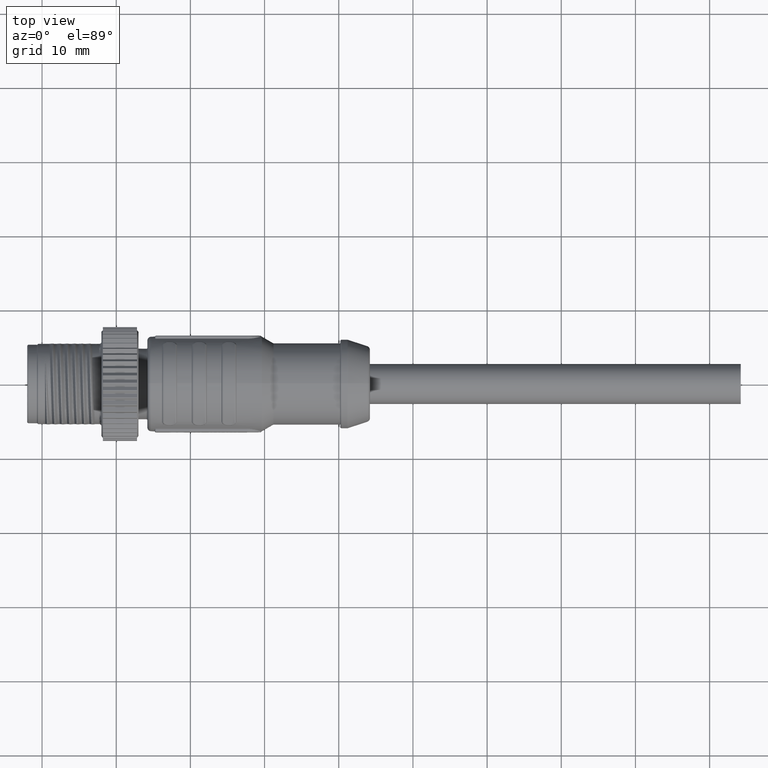
[diagram: clean part render]
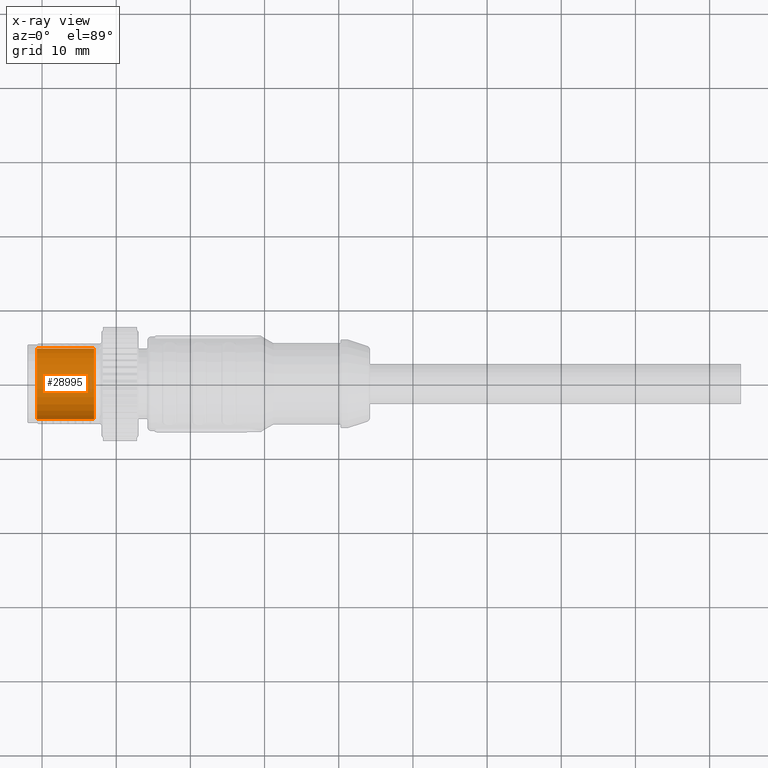
[diagram: x-ray — body ghosted, one internal face saturated and labeled with its STEP entity id]
A machine part, top view, then the same camera in x-ray: the body is ghosted and one INTERNAL B-rep face — a face not visible from any outside direction — is saturated and labeled: STEP entity #28995.
In plain terms, the highlighted cylindrical surface (edge-blend (fillet) strip) has radius 4.75 mm, axis along (1, 0, 0).
Its self-contained STEP definition (entity closure, byte-faithful):
#28858=DIRECTION('',(-1.E0,0.E0,0.E0));
#28859=VECTOR('',#28858,7.7E0);
#28860=CARTESIAN_POINT('',(7.E0,-4.75E0,0.E0));
#28861=LINE('',#28860,#28859);
#28862=DIRECTION('',(1.E0,0.E0,0.E0));
#28863=VECTOR('',#28862,7.7E0);
#28864=CARTESIAN_POINT('',(-7.E-1,4.75E0,0.E0));
#28865=LINE('',#28864,#28863);
#28881=CARTESIAN_POINT('',(7.E0,0.E0,0.E0));
#28882=DIRECTION('',(1.E0,0.E0,0.E0));
#28883=DIRECTION('',(0.E0,-1.E0,0.E0));
#28884=AXIS2_PLACEMENT_3D('',#28881,#28882,#28883);
#28933=CARTESIAN_POINT('',(-7.E-1,0.E0,0.E0));
#28934=DIRECTION('',(-1.E0,0.E0,0.E0));
#28935=DIRECTION('',(0.E0,1.E0,0.E0));
#28936=AXIS2_PLACEMENT_3D('',#28933,#28934,#28935);
#28956=CARTESIAN_POINT('',(7.E0,4.75E0,0.E0));
#28957=CARTESIAN_POINT('',(7.E0,-4.75E0,0.E0));
#28958=VERTEX_POINT('',#28956);
#28959=VERTEX_POINT('',#28957);
#28960=CARTESIAN_POINT('',(-7.E-1,4.75E0,0.E0));
#28961=VERTEX_POINT('',#28960);
#28962=CARTESIAN_POINT('',(-7.E-1,-4.75E0,0.E0));
#28963=VERTEX_POINT('',#28962);
#28980=CARTESIAN_POINT('',(-1.004E0,0.E0,0.E0));
#28981=DIRECTION('',(1.E0,0.E0,0.E0));
#28982=DIRECTION('',(0.E0,-1.E0,0.E0));
#28983=AXIS2_PLACEMENT_3D('',#28980,#28981,#28982);
#28984=CYLINDRICAL_SURFACE('',#28983,4.75E0);
#28986=ORIENTED_EDGE('',*,*,#28985,.F.);
#28988=ORIENTED_EDGE('',*,*,#28987,.T.);
#28990=ORIENTED_EDGE('',*,*,#28989,.F.);
#28992=ORIENTED_EDGE('',*,*,#28991,.T.);
#28993=EDGE_LOOP('',(#28986,#28988,#28990,#28992));
#28994=FACE_OUTER_BOUND('',#28993,.F.);
#28995=ADVANCED_FACE('',(#28994),#28984,.F.);
#28885=CIRCLE('',#28884,4.75E0);
#28937=CIRCLE('',#28936,4.75E0);
#28985=EDGE_CURVE('',#28959,#28958,#28885,.T.);
#28987=EDGE_CURVE('',#28959,#28963,#28861,.T.);
#28989=EDGE_CURVE('',#28961,#28963,#28937,.T.);
#28991=EDGE_CURVE('',#28961,#28958,#28865,.T.);